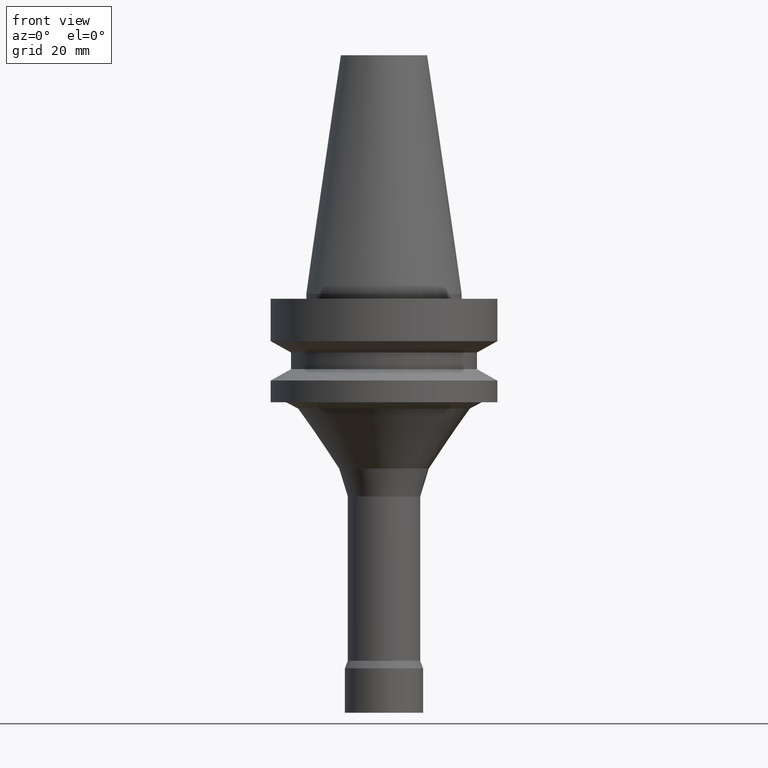
[diagram: clean part render]
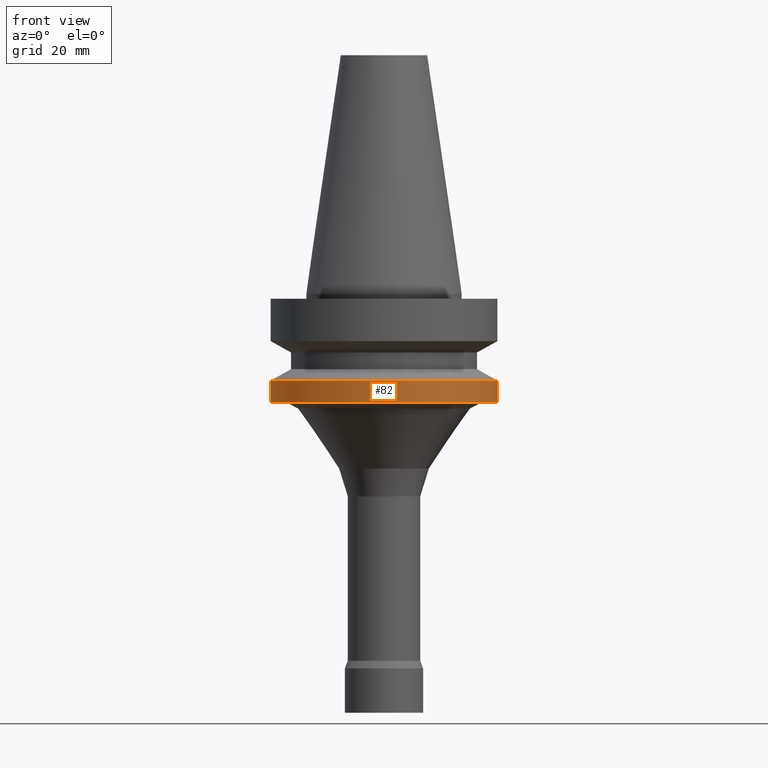
[diagram: same view with one face highlighted and labeled with its STEP entity id]
A machine part, front view. The second image highlights one B-rep face of the part: STEP entity #82.
In plain terms, the highlighted cylindrical surface (bore or boss wall) has radius 23 mm, axis along (-0, -0, 1).
Its self-contained STEP definition (entity closure, byte-faithful):
#82=ADVANCED_FACE('',(#113,#114),#115,.T.);
#113=FACE_BOUND('',#162,.T.);
#114=FACE_BOUND('',#163,.T.);
#115=CYLINDRICAL_SURFACE('',#164,23.0);
#162=EDGE_LOOP('',(#225));
#163=EDGE_LOOP('',(#226));
#164=AXIS2_PLACEMENT_3D('',#227,#228,#229);
#225=ORIENTED_EDGE('',*,*,#282,.F.);
#226=ORIENTED_EDGE('',*,*,#280,.T.);
#227=CARTESIAN_POINT('',(1.21240033115588E-015,2.42480066231176E-015,-19.8));
#228=DIRECTION('',(-6.12323399573677E-017,-1.22464679914735E-016,1.0));
#229=DIRECTION('',(-1.23259516440783E-032,1.0,1.22464679914735E-016));
#280=EDGE_CURVE('',#302,#302,#303,.T.);
#282=EDGE_CURVE('',#306,#306,#307,.T.);
#302=VERTEX_POINT('',#334);
#303=CIRCLE('',#335,23.0);
#306=VERTEX_POINT('',#338);
#307=CIRCLE('',#339,23.0);
#334=CARTESIAN_POINT('',(1.07768918324967E-015,23.0,-17.6));
#335=AXIS2_PLACEMENT_3D('',#372,#373,#374);
#338=CARTESIAN_POINT('',(1.34711147906209E-015,23.0,-22.0));
#339=AXIS2_PLACEMENT_3D('',#378,#379,#380);
#372=CARTESIAN_POINT('',(1.07768918324967E-015,2.15537836649934E-015,-17.6));
#373=DIRECTION('',(6.12323399573677E-017,1.22464679914735E-016,-1.0));
#374=DIRECTION('',(-1.23259516440783E-032,1.0,1.22464679914735E-016));
#378=CARTESIAN_POINT('',(1.34711147906209E-015,2.69422295812418E-015,-22.0));
#379=DIRECTION('',(6.12323399573677E-017,1.22464679914735E-016,-1.0));
#380=DIRECTION('',(-1.23259516440783E-032,1.0,1.22464679914735E-016));